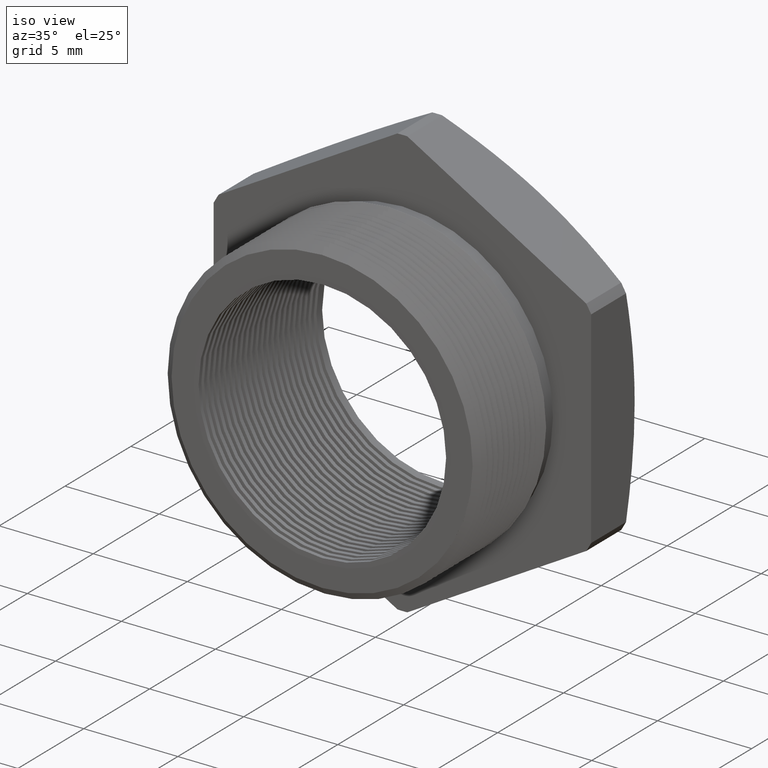
[diagram: clean part render]
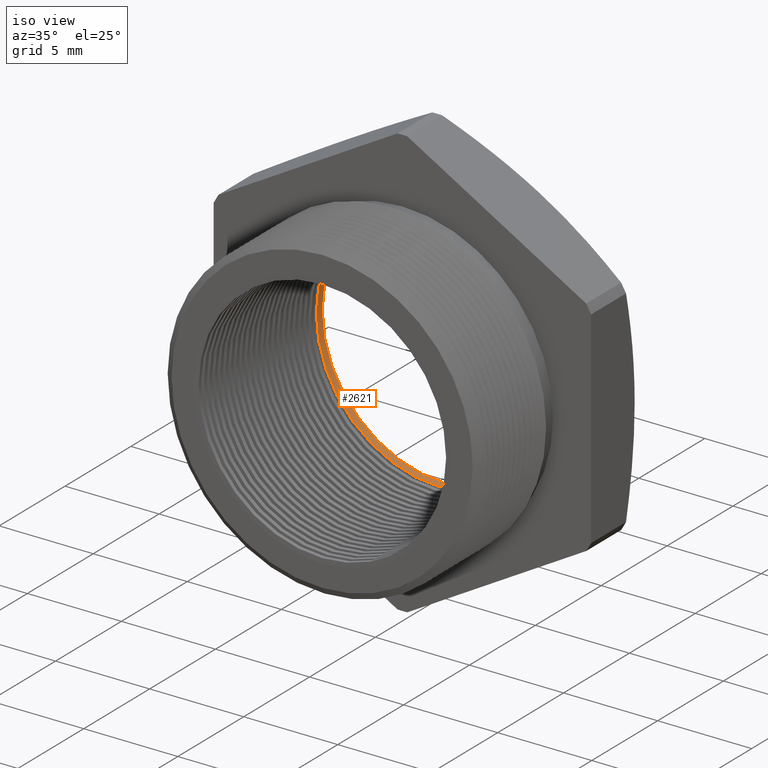
[diagram: same view with one face highlighted and labeled with its STEP entity id]
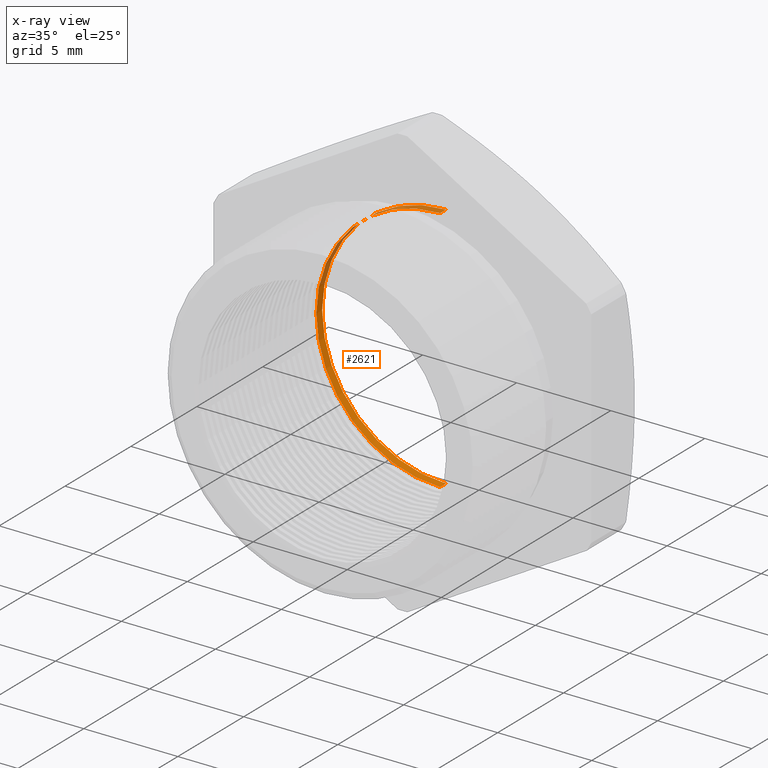
[diagram: x-ray of the same camera — body ghosted, the highlighted face saturated]
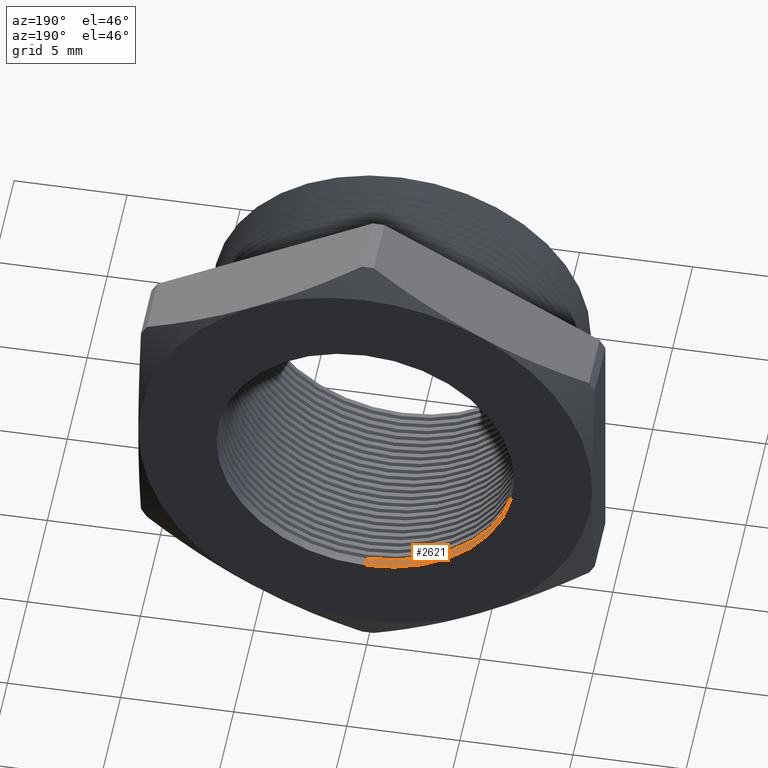
[diagram: same view with one face highlighted and labeled with its STEP entity id]
A machine part, iso view. The second image highlights one B-rep face of the part: STEP entity #2621.
The next image is the same camera in x-ray: the body ghosted, the highlighted face saturated — about 22% of this face is hidden behind the body in this view.
A second angle (auxiliary view) of the same face is appended — the face is thin or edge-on in the first view.
In plain terms, the highlighted cylindrical surface (partial cylindrical patch) has radius 6.5783 mm, axis along (-0, -1, -0).
Its self-contained STEP definition (entity closure, byte-faithful):
#2572 = VERTEX_POINT ( 'NONE', #5678 ) ;
#2573 = VERTEX_POINT ( 'NONE', #5677 ) ;
#2580 = EDGE_CURVE ( 'NONE', #2573, #2572, #5670, .T. ) ;
#2605 = EDGE_CURVE ( 'NONE', #2627, #2573, #5734, .T. ) ;
#2611 = ORIENTED_EDGE ( 'NONE', *, *, #2614, .T. ) ;
#2612 = EDGE_LOOP ( 'NONE', ( #2628, #2611, #2613, #2624 ) ) ;
#2613 = ORIENTED_EDGE ( 'NONE', *, *, #2580, .F. ) ;
#2614 = EDGE_CURVE ( 'NONE', #2625, #2572, #5778, .T. ) ;
#2621 = ADVANCED_FACE ( 'NONE', ( #5764 ), #5763, .F. ) ;
#2624 = ORIENTED_EDGE ( 'NONE', *, *, #2605, .F. ) ;
#2625 = VERTEX_POINT ( 'NONE', #5753 ) ;
#2627 = VERTEX_POINT ( 'NONE', #5752 ) ;
#2628 = ORIENTED_EDGE ( 'NONE', *, *, #2629, .F. ) ;
#2629 = EDGE_CURVE ( 'NONE', #2625, #2627, #5814, .T. ) ;
#5662 = DIRECTION ( 'NONE',  ( 0.0000000000000000000, 0.0000000000000000000, -1.000000000000000000 ) ) ;
#5663 = DIRECTION ( 'NONE',  ( -0.0000000000000000000, 1.000000000000000000, -0.0000000000000000000 ) ) ;
#5664 = CARTESIAN_POINT ( 'NONE',  ( 0.0000000000000000000, 0.3903219653570460000, 0.0000000000000000000 ) ) ;
#5665 = AXIS2_PLACEMENT_3D ( 'NONE', #5664, #5663, #5662 ) ;
#5670 = CIRCLE ( 'NONE', #5665, 0.2589880461203001900 ) ;
#5677 = CARTESIAN_POINT ( 'NONE',  ( 0.0000000000000000000, 0.3903219653570460000, -0.2589880461203001900 ) ) ;
#5678 = CARTESIAN_POINT ( 'NONE',  ( 3.171688816986526800E-017, 0.3903219653570460000, 0.2589880461203001900 ) ) ;
#5731 = DIRECTION ( 'NONE',  ( -0.0000000000000000000, -1.000000000000000000, -0.0000000000000000000 ) ) ;
#5732 = VECTOR ( 'NONE', #5731, 39.37007874015748100 ) ;
#5733 = CARTESIAN_POINT ( 'NONE',  ( 0.0000000000000000000, 0.0000000000000000000, -0.2589880461203001900 ) ) ;
#5734 = LINE ( 'NONE', #5733, #5732 ) ;
#5752 = CARTESIAN_POINT ( 'NONE',  ( 0.0000000000000000000, 0.4075548905829479200, -0.2589880461203001900 ) ) ;
#5753 = CARTESIAN_POINT ( 'NONE',  ( 3.171688816986526800E-017, 0.4075548905829479200, 0.2589880461203001900 ) ) ;
#5758 = DIRECTION ( 'NONE',  ( 0.0000000000000000000, 0.0000000000000000000, -1.000000000000000000 ) ) ;
#5759 = DIRECTION ( 'NONE',  ( -0.0000000000000000000, -1.000000000000000000, -0.0000000000000000000 ) ) ;
#5760 = CARTESIAN_POINT ( 'NONE',  ( 0.0000000000000000000, 0.0000000000000000000, 0.0000000000000000000 ) ) ;
#5761 = AXIS2_PLACEMENT_3D ( 'NONE', #5760, #5759, #5758 ) ;
#5763 = CYLINDRICAL_SURFACE ( 'NONE', #5761, 0.2589880461203001900 ) ;
#5764 = FACE_OUTER_BOUND ( 'NONE', #2612, .T. ) ;
#5775 = DIRECTION ( 'NONE',  ( -0.0000000000000000000, -1.000000000000000000, -0.0000000000000000000 ) ) ;
#5776 = VECTOR ( 'NONE', #5775, 39.37007874015748100 ) ;
#5777 = CARTESIAN_POINT ( 'NONE',  ( 3.171688816986526800E-017, 0.0000000000000000000, 0.2589880461203001900 ) ) ;
#5778 = LINE ( 'NONE', #5777, #5776 ) ;
#5810 = DIRECTION ( 'NONE',  ( 0.0000000000000000000, 0.0000000000000000000, -1.000000000000000000 ) ) ;
#5811 = DIRECTION ( 'NONE',  ( -0.0000000000000000000, -1.000000000000000000, -0.0000000000000000000 ) ) ;
#5812 = CARTESIAN_POINT ( 'NONE',  ( 0.0000000000000000000, 0.4075548905829479200, 0.0000000000000000000 ) ) ;
#5813 = AXIS2_PLACEMENT_3D ( 'NONE', #5812, #5811, #5810 ) ;
#5814 = CIRCLE ( 'NONE', #5813, 0.2589880461203001900 ) ;